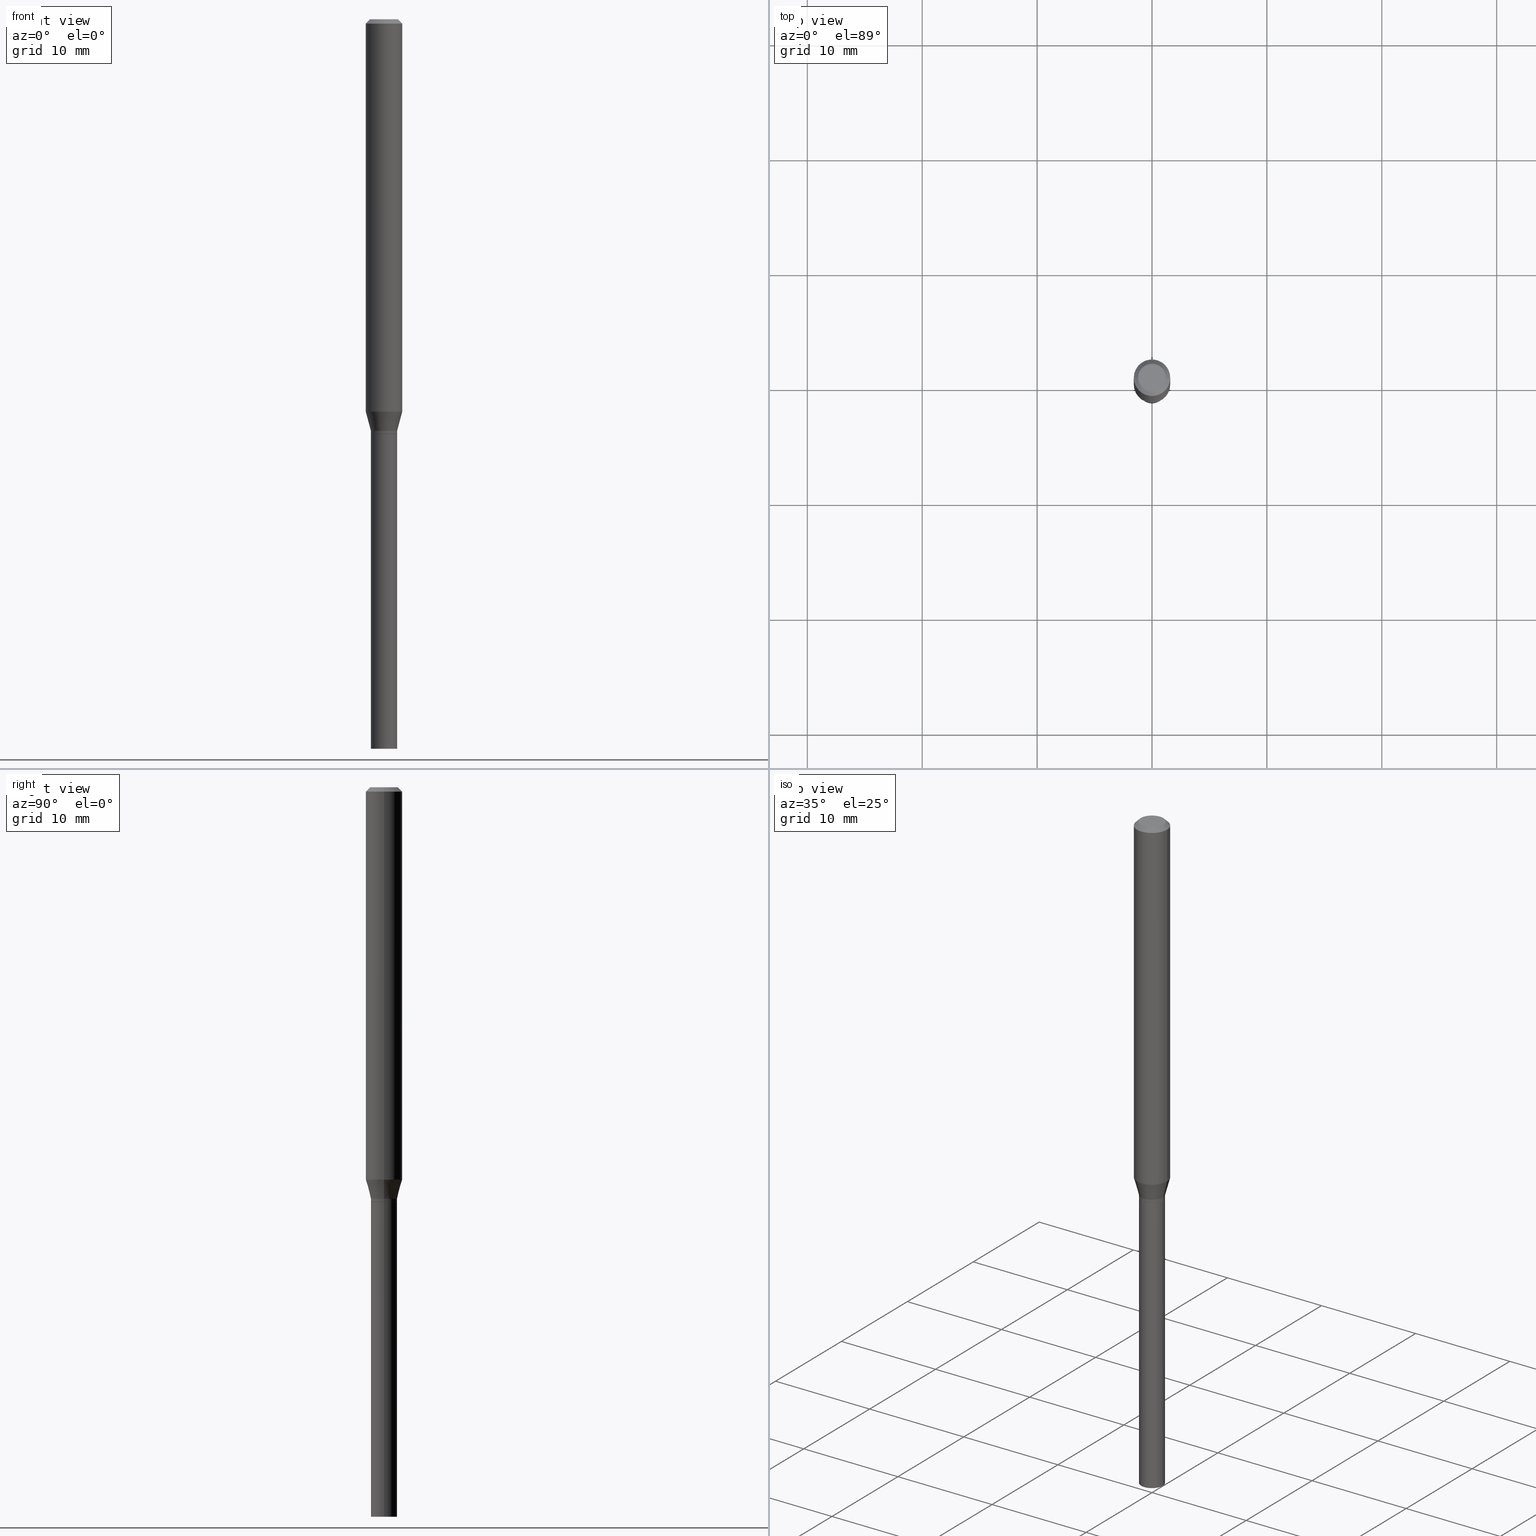
[diagram: canonical four-view strip — front | top / right | iso, engineering-drawing reading convention]
A machine part, canonical four-view strip (front | top / right | iso — engineering-drawing reading convention). The complete STEP part file that produces these views, byte-faithful:
ISO-10303-21;
HEADER;
FILE_DESCRIPTION (( 'STEP AP203' ),
    '1' );
FILE_NAME ('00658.STEP',
    '2024-03-19T22:22:50',
    ( '' ),
    ( '' ),
    'SwSTEP 2.0',
    'SolidWorks 2023',
    '' );
FILE_SCHEMA (( 'CONFIG_CONTROL_DESIGN' ));
ENDSEC;

DATA;
#1 = ADVANCED_FACE ( 'NONE', ( #61 ), #199, .F. ) ;
#2 = DIRECTION ( 'NONE',  ( 0.000000000000000000, 0.000000000000000000, 1.000000000000000000 ) ) ;
#3 = ORIENTED_EDGE ( 'NONE', *, *, #115, .T. ) ;
#4 = VERTEX_POINT ( 'NONE', #409 ) ;
#5 = DIRECTION ( 'NONE',  ( -1.000000000000000000, 6.982962677686265922E-15, -4.876176775795935793E-29 ) ) ;
#6 = ADVANCED_FACE ( 'NONE', ( #189 ), #192, .T. ) ;
#7 = CALENDAR_DATE ( 2024, 19, 3 ) ;
#8 = DIRECTION ( 'NONE',  ( 1.000000000000000000, -6.982962677686266711E-15, 4.876176775795935793E-29 ) ) ;
#9 = ORIENTED_EDGE ( 'NONE', *, *, #273, .F. ) ;
#10 = CC_DESIGN_PERSON_AND_ORGANIZATION_ASSIGNMENT ( #340, #128, ( #161 ) ) ;
#11 = CONICAL_SURFACE ( 'NONE', #326, 0.06250000000000000000, 0.7853981633974512766 ) ;
#12 = FACE_OUTER_BOUND ( 'NONE', #76, .T. ) ;
#13 = ORIENTED_EDGE ( 'NONE', *, *, #251, .F. ) ;
#14 = APPROVAL_ROLE ( '' ) ;
#15 = EDGE_LOOP ( 'NONE', ( #420, #208, #325, #462 ) ) ;
#16 = DIRECTION ( 'NONE',  ( 1.000000000000000000, -6.982962677686246989E-15, 0.000000000000000000 ) ) ;
#17 = APPROVAL_ROLE ( '' ) ;
#18 = PLANE ( 'NONE',  #433 ) ;
#19 = ORIENTED_EDGE ( 'NONE', *, *, #459, .T. ) ;
#20 = AXIS2_PLACEMENT_3D ( 'NONE', #307, #22, #444 ) ;
#21 = LOCAL_TIME ( 18, 22, 50.00000000000000000, #111 ) ;
#22 = DIRECTION ( 'NONE',  ( -2.445468806185136597E-29, 3.491481338843145583E-15, 1.000000000000000000 ) ) ;
#23 = CYLINDRICAL_SURFACE ( 'NONE', #286, 0.04499999999999991507 ) ;
#24 = DIRECTION ( 'NONE',  ( -2.445468806185136597E-29, 3.491481338843145583E-15, 1.000000000000000000 ) ) ;
#25 = EDGE_LOOP ( 'NONE', ( #194, #380 ) ) ;
#26 = DIRECTION ( 'NONE',  ( -2.438088387897960049E-29, 3.491481338843145188E-15, 1.000000000000000000 ) ) ;
#27 = CIRCLE ( 'NONE', #244, 0.06250000000000000000 ) ;
#28 = DIRECTION ( 'NONE',  ( -2.445468806185136597E-29, 3.491481338843145583E-15, 1.000000000000000000 ) ) ;
#29 = APPROVAL_PERSON_ORGANIZATION ( #151, #291, #82 ) ;
#30 = CARTESIAN_POINT ( 'NONE',  ( 3.448111016721042669E-29, -4.922988687768835701E-15, -1.409999999999999920 ) ) ;
#31 = VERTEX_POINT ( 'NONE', #196 ) ;
#32 = LINE ( 'NONE', #164, #103 ) ;
#33 = DIRECTION ( 'NONE',  ( 1.000000000000000000, -6.982962677686257244E-15, 0.000000000000000000 ) ) ;
#34 = EDGE_CURVE ( 'NONE', #405, #122, #90, .T. ) ;
#35 = VERTEX_POINT ( 'NONE', #149 ) ;
#36 = APPROVAL_PERSON_ORGANIZATION ( #404, #436, #17 ) ;
#37 = DIRECTION ( 'NONE',  ( 1.000000000000000000, -6.982962677686266711E-15, 0.000000000000000000 ) ) ;
#38 = ADVANCED_FACE ( 'NONE', ( #86 ), #456, .T. ) ;
#39 = VERTEX_POINT ( 'NONE', #124 ) ;
#40 = AXIS2_PLACEMENT_3D ( 'NONE', #30, #242, #344 ) ;
#41 = VECTOR ( 'NONE', #99, 39.37007874015748143 ) ;
#42 = PRODUCT_RELATED_PRODUCT_CATEGORY ( 'detail', '', ( #51 ) ) ;
#43 = DIRECTION ( 'NONE',  ( -1.000000000000000000, 6.982962677686265922E-15, -4.876176775795935793E-29 ) ) ;
#44 = ORIENTED_EDGE ( 'NONE', *, *, #178, .F. ) ;
#45 = DATE_AND_TIME ( #263, #443 ) ;
#46 = CARTESIAN_POINT ( 'NONE',  ( -0.06250000000000000000, -4.250867727289546507E-15, -1.344689110867543391 ) ) ;
#47 = SHAPE_DEFINITION_REPRESENTATION ( #230, #183 ) ;
#48 = CARTESIAN_POINT ( 'NONE',  ( 3.668203209277705088E-31, -5.237222008264718399E-17, -0.01499999999999999944 ) ) ;
#49 = ORIENTED_EDGE ( 'NONE', *, *, #396, .F. ) ;
#50 = ORIENTED_EDGE ( 'NONE', *, *, #276, .F. ) ;
#51 = PRODUCT ( '00658', '00658', '', ( #305 ) ) ;
#52 = CIRCLE ( 'NONE', #237, 0.04749999999999999362 ) ;
#53 = CIRCLE ( 'NONE', #63, 0.06250000000000000000 ) ;
#54 = CALENDAR_DATE ( 2024, 19, 3 ) ;
#55 = VERTEX_POINT ( 'NONE', #296 ) ;
#56 = CARTESIAN_POINT ( 'NONE',  ( 3.668203209277705088E-31, -5.237222008264718399E-17, -0.01499999999999999944 ) ) ;
#57 = ORIENTED_EDGE ( 'NONE', *, *, #343, .T. ) ;
#58 = DIRECTION ( 'NONE',  ( -2.445468806185136597E-29, 3.491481338843145583E-15, 1.000000000000000000 ) ) ;
#59 = EDGE_CURVE ( 'NONE', #4, #464, #234, .T. ) ;
#60 = LINE ( 'NONE', #377, #427 ) ;
#61 = FACE_OUTER_BOUND ( 'NONE', #25, .T. ) ;
#62 = CIRCLE ( 'NONE', #72, 0.06250000000000000000 ) ;
#63 = AXIS2_PLACEMENT_3D ( 'NONE', #211, #109, #37 ) ;
#64 = EDGE_CURVE ( 'NONE', #405, #31, #77, .T. ) ;
#65 = DIRECTION ( 'NONE',  ( -2.445468806185136597E-29, 3.491481338843145583E-15, 1.000000000000000000 ) ) ;
#66 = DIRECTION ( 'NONE',  ( -2.445468806185136877E-29, 3.491481338843145188E-15, 1.000000000000000000 ) ) ;
#67 = CYLINDRICAL_SURFACE ( 'NONE', #355, 0.04499999999999999833 ) ;
#68 = CARTESIAN_POINT ( 'NONE',  ( -0.04449999999999999789, -4.639062756569910103E-15, -1.419999999999999929 ) ) ;
#69 = DIRECTION ( 'NONE',  ( -1.000000000000000000, 6.982962677686266711E-15, 0.000000000000000000 ) ) ;
#70 = APPROVAL ( #437, 'UNSPECIFIED' ) ;
#71 = FACE_OUTER_BOUND ( 'NONE', #15, .T. ) ;
#72 = AXIS2_PLACEMENT_3D ( 'NONE', #56, #311, #266 ) ;
#73 = LINE ( 'NONE', #176, #127 ) ;
#74 = EDGE_CURVE ( 'NONE', #35, #55, #60, .T. ) ;
#75 = DIRECTION ( 'NONE',  ( 1.000000000000000000, -6.982962677686246989E-15, 0.000000000000000000 ) ) ;
#76 = EDGE_LOOP ( 'NONE', ( #361, #19, #57, #454 ) ) ;
#77 = CIRCLE ( 'NONE', #144, 0.04500000000000019262 ) ;
#78 = CONICAL_SURFACE ( 'NONE', #342, 0.04449999999999999789, 0.7853981633980202659 ) ;
#79 = EDGE_CURVE ( 'NONE', #256, #35, #373, .T. ) ;
#80 = APPROVAL_DATE_TIME ( #408, #436 ) ;
#81 = DIRECTION ( 'NONE',  ( -2.445468806185136597E-29, 3.491481338843145583E-15, 1.000000000000000000 ) ) ;
#82 = APPROVAL_ROLE ( '' ) ;
#83 = DIRECTION ( 'NONE',  ( -2.445468806185136597E-29, 3.491481338843145583E-15, 1.000000000000000000 ) ) ;
#84 = ORIENTED_EDGE ( 'NONE', *, *, #93, .F. ) ;
#85 = PERSON_AND_ORGANIZATION_ROLE ( 'creator' ) ;
#86 = FACE_OUTER_BOUND ( 'NONE', #187, .T. ) ;
#87 = AXIS2_PLACEMENT_3D ( 'NONE', #200, #28, #347 ) ;
#88 = AXIS2_PLACEMENT_3D ( 'NONE', #429, #360, #75 ) ;
#89 = DATE_AND_TIME ( #195, #21 ) ;
#90 = LINE ( 'NONE', #446, #135 ) ;
#91 = ORIENTED_EDGE ( 'NONE', *, *, #303, .T. ) ;
#92 = DIRECTION ( 'NONE',  ( -2.445468806185136597E-29, 3.491481338843145583E-15, 1.000000000000000000 ) ) ;
#93 = EDGE_CURVE ( 'NONE', #316, #464, #62, .T. ) ;
#94 = ADVANCED_FACE ( 'NONE', ( #193 ), #113, .T. ) ;
#95 = FACE_OUTER_BOUND ( 'NONE', #304, .T. ) ;
#96 = EDGE_LOOP ( 'NONE', ( #3, #366 ) ) ;
#97 = AXIS2_PLACEMENT_3D ( 'NONE', #386, #102, #350 ) ;
#98 = ADVANCED_FACE ( 'NONE', ( #12 ), #160, .T. ) ;
#99 = DIRECTION ( 'NONE',  ( 0.2588190451025211281, 1.565188264969623940E-15, 0.9659258262890682012 ) ) ;
#100 = CARTESIAN_POINT ( 'NONE',  ( 0.000000000000000000, 0.000000000000000000, 0.000000000000000000 ) ) ;
#101 = DIRECTION ( 'NONE',  ( 1.000000000000000000, -6.982962677686269077E-15, 0.000000000000000000 ) ) ;
#102 = DIRECTION ( 'NONE',  ( -2.445468806185136597E-29, 3.491481338843145583E-15, 1.000000000000000000 ) ) ;
#103 = VECTOR ( 'NONE', #170, 39.37007874015748854 ) ;
#104 = CARTESIAN_POINT ( 'NONE',  ( 3.448111016721042669E-29, -4.922988687768835701E-15, -1.409999999999999920 ) ) ;
#105 = VERTEX_POINT ( 'NONE', #339 ) ;
#106 = FACE_OUTER_BOUND ( 'NONE', #96, .T. ) ;
#107 = APPLICATION_PROTOCOL_DEFINITION ( 'international standard', 'config_control_design', 1994, #270 ) ;
#108 = ORIENTED_EDGE ( 'NONE', *, *, #257, .T. ) ;
#109 = DIRECTION ( 'NONE',  ( -2.445468806185136597E-29, 3.491481338843145583E-15, 1.000000000000000000 ) ) ;
#110 = ADVANCED_FACE ( 'NONE', ( #130 ), #18, .F. ) ;
#111 = COORDINATED_UNIVERSAL_TIME_OFFSET ( 5, 0, .BEHIND. ) ;
#112 = ORIENTED_EDGE ( 'NONE', *, *, #365, .F. ) ;
#113 = CONICAL_SURFACE ( 'NONE', #20, 0.04449999999999999789, 0.7853981633980202659 ) ;
#114 = CIRCLE ( 'NONE', #232, 0.04449999999999999789 ) ;
#115 = EDGE_CURVE ( 'NONE', #129, #105, #52, .T. ) ;
#116 = MANIFOLD_SOLID_BREP ( 'Body-Move/Copy2[2]', #315 ) ;
#117 = APPROVAL_DATE_TIME ( #123, #70 ) ;
#118 = CYLINDRICAL_SURFACE ( 'NONE', #213, 0.04499999999999991507 ) ;
#119 = DATE_AND_TIME ( #54, #422 ) ;
#120 = EDGE_CURVE ( 'NONE', #131, #4, #27, .T. ) ;
#121 = DIRECTION ( 'NONE',  ( -2.438088387897960049E-29, 3.491481338843145188E-15, 1.000000000000000000 ) ) ;
#122 = VERTEX_POINT ( 'NONE', #224 ) ;
#123 = DATE_AND_TIME ( #7, #159 ) ;
#124 = CARTESIAN_POINT ( 'NONE',  ( 0.04499999999999999833, -5.272136821653149037E-15, -1.420000000000000151 ) ) ;
#125 = CIRCLE ( 'NONE', #87, 0.04499999999999963751 ) ;
#126 = ORIENTED_EDGE ( 'NONE', *, *, #365, .T. ) ;
#127 = VECTOR ( 'NONE', #287, 39.37007874015748143 ) ;
#128 = PERSON_AND_ORGANIZATION_ROLE ( 'creator' ) ;
#129 = VERTEX_POINT ( 'NONE', #369 ) ;
#130 = FACE_OUTER_BOUND ( 'NONE', #428, .T. ) ;
#131 = VERTEX_POINT ( 'NONE', #46 ) ;
#132 = CARTESIAN_POINT ( 'NONE',  ( 2.066805758436263276E-45, -2.950850862763961857E-31, -8.451572774957708509E-17 ) ) ;
#133 = CC_DESIGN_PERSON_AND_ORGANIZATION_ASSIGNMENT ( #260, #156, ( #174 ) ) ;
#134 = CARTESIAN_POINT ( 'NONE',  ( 3.471342970379802534E-29, -4.956157760487845847E-15, -1.419500000000000206 ) ) ;
#135 = VECTOR ( 'NONE', #338, 39.37007874015748143 ) ;
#136 = CARTESIAN_POINT ( 'NONE',  ( 3.472565704782893654E-29, -4.957903501157266562E-15, -1.419999999999999929 ) ) ;
#137 = CARTESIAN_POINT ( 'NONE',  ( 3.472565704782894214E-29, -4.957903501157267351E-15, -1.420000000000000151 ) ) ;
#138 = ORIENTED_EDGE ( 'NONE', *, *, #240, .F. ) ;
#139 = DIRECTION ( 'NONE',  ( 1.000000000000000000, -6.982962677686265922E-15, 4.876176775795936353E-29 ) ) ;
#140 = DIRECTION ( 'NONE',  ( 1.000000000000000000, -6.982962677686266711E-15, 4.876176775795935793E-29 ) ) ;
#141 = ORIENTED_EDGE ( 'NONE', *, *, #432, .F. ) ;
#142 = DIRECTION ( 'NONE',  ( -2.445468806185136597E-29, 3.491481338843145583E-15, 1.000000000000000000 ) ) ;
#143 = DIRECTION ( 'NONE',  ( 2.438088387897960049E-29, -3.491481338843145188E-15, -1.000000000000000000 ) ) ;
#144 = AXIS2_PLACEMENT_3D ( 'NONE', #185, #231, #374 ) ;
#145 = VECTOR ( 'NONE', #385, 39.37007874015748143 ) ;
#146 = DIRECTION ( 'NONE',  ( 1.000000000000000000, -6.982962677686262766E-15, 0.000000000000000000 ) ) ;
#147 = ORIENTED_EDGE ( 'NONE', *, *, #306, .F. ) ;
#148 = COORDINATED_UNIVERSAL_TIME_OFFSET ( 5, 0, .BEHIND. ) ;
#149 = CARTESIAN_POINT ( 'NONE',  ( -0.04499999999999999833, -6.523559193040520779E-15, -2.500000000000000000 ) ) ;
#150 = AXIS2_PLACEMENT_3D ( 'NONE', #137, #24, #203 ) ;
#151 = PERSON_AND_ORGANIZATION ( #226, #267 ) ;
#152 = CARTESIAN_POINT ( 'NONE',  ( 0.06250000000000000000, -4.364351673553916694E-16, 3.047610484872459871E-30 ) ) ;
#153 = ADVANCED_FACE ( 'NONE', ( #435 ), #118, .T. ) ;
#154 = DATE_TIME_ROLE ( 'creation_date' ) ;
#155 = DIRECTION ( 'NONE',  ( -2.445468806185136597E-29, 3.491481338843145583E-15, 1.000000000000000000 ) ) ;
#156 = PERSON_AND_ORGANIZATION_ROLE ( 'design_supplier' ) ;
#157 = DIRECTION ( 'NONE',  ( 1.000000000000000000, -6.982962677686265922E-15, 4.876176775795935793E-29 ) ) ;
#158 = CIRCLE ( 'NONE', #421, 0.04449999999999999789 ) ;
#159 = LOCAL_TIME ( 18, 22, 50.00000000000000000, #331 ) ;
#160 = CYLINDRICAL_SURFACE ( 'NONE', #221, 0.04499999999999999833 ) ;
#161 = PRODUCT_DEFINITION ( 'UNKNOWN', '', #174, #294 ) ;
#162 = ORIENTED_EDGE ( 'NONE', *, *, #367, .F. ) ;
#163 = DIRECTION ( 'NONE',  ( 1.000000000000000000, -6.982962677686257244E-15, 0.000000000000000000 ) ) ;
#164 = CARTESIAN_POINT ( 'NONE',  ( -0.04449999999999999789, -4.641711983744021304E-15, -1.419999999999999929 ) ) ;
#165 = AXIS2_PLACEMENT_3D ( 'NONE', #379, #440, #334 ) ;
#166 = AXIS2_PLACEMENT_3D ( 'NONE', #453, #280, #419 ) ;
#167 = EDGE_LOOP ( 'NONE', ( #402, #300, #239, #398 ) ) ;
#168 = FACE_OUTER_BOUND ( 'NONE', #233, .T. ) ;
#169 = CARTESIAN_POINT ( 'NONE',  ( 0.04499999999999963751, -5.237222008264715021E-15, -1.409999999999999920 ) ) ;
#170 = DIRECTION ( 'NONE',  ( -0.7071067811869518049, 7.493145998871813553E-15, 0.7071067811861430075 ) ) ;
#171 = ADVANCED_FACE ( 'NONE', ( #372 ), #11, .T. ) ;
#172 = ADVANCED_FACE ( 'NONE', ( #95 ), #23, .T. ) ;
#173 = PLANE ( 'NONE',  #206 ) ;
#174 = PRODUCT_DEFINITION_FORMATION_WITH_SPECIFIED_SOURCE ( 'ANY', '', #51, .NOT_KNOWN. ) ;
#175 = EDGE_CURVE ( 'NONE', #400, #31, #414, .T. ) ;
#176 = CARTESIAN_POINT ( 'NONE',  ( 0.06250000000000000000, -4.811533449433679005E-16, -0.01499999999999999944 ) ) ;
#177 = FACE_OUTER_BOUND ( 'NONE', #223, .T. ) ;
#178 = EDGE_CURVE ( 'NONE', #262, #122, #125, .T. ) ;
#179 = CIRCLE ( 'NONE', #40, 0.04499999999999963751 ) ;
#180 = AXIS2_PLACEMENT_3D ( 'NONE', #104, #324, #250 ) ;
#181 = ORIENTED_EDGE ( 'NONE', *, *, #59, .F. ) ;
#182 = CARTESIAN_POINT ( 'NONE',  ( -0.04499999999999963751, -4.603244456676792700E-15, -1.409999999999999920 ) ) ;
#183 = ADVANCED_BREP_SHAPE_REPRESENTATION ( '00658', ( #426, #116, #356 ), #465 ) ;
#184 = PERSON_AND_ORGANIZATION ( #226, #267 ) ;
#185 = CARTESIAN_POINT ( 'NONE',  ( 3.471342970379802534E-29, -4.956157760487845847E-15, -1.419500000000000206 ) ) ;
#186 = ADVANCED_FACE ( 'NONE', ( #168 ), #389, .T. ) ;
#187 = EDGE_LOOP ( 'NONE', ( #147, #297, #335, #50 ) ) ;
#188 = APPLICATION_CONTEXT ( 'configuration controlled 3d designs of mechanical parts and assemblies' ) ;
#189 = FACE_OUTER_BOUND ( 'NONE', #431, .T. ) ;
#190 = CC_DESIGN_APPROVAL ( #436, ( #349 ) ) ;
#191 = DATE_TIME_ROLE ( 'classification_date' ) ;
#192 = CYLINDRICAL_SURFACE ( 'NONE', #205, 0.06250000000000000000 ) ;
#193 = FACE_OUTER_BOUND ( 'NONE', #359, .T. ) ;
#194 = ORIENTED_EDGE ( 'NONE', *, *, #79, .F. ) ;
#195 = CALENDAR_DATE ( 2024, 19, 3 ) ;
#196 = CARTESIAN_POINT ( 'NONE',  ( 0.04500000000000019262, -5.270391080983729111E-15, -1.419500000000000206 ) ) ;
#197 = CIRCLE ( 'NONE', #150, 0.04499999999999999833 ) ;
#198 = CIRCLE ( 'NONE', #88, 0.04499999999999999833 ) ;
#199 = PLANE ( 'NONE',  #348 ) ;
#200 = CARTESIAN_POINT ( 'NONE',  ( 3.448111016721042669E-29, -4.922988687768835701E-15, -1.409999999999999920 ) ) ;
#201 = ORIENTED_EDGE ( 'NONE', *, *, #175, .T. ) ;
#202 = CARTESIAN_POINT ( 'NONE',  ( 0.04449999999999999789, -5.268645340314304452E-15, -1.419999999999999929 ) ) ;
#203 = DIRECTION ( 'NONE',  ( 1.000000000000000000, -6.982962677686269077E-15, 0.000000000000000000 ) ) ;
#204 = ADVANCED_FACE ( 'NONE', ( #346 ), #67, .T. ) ;
#205 = AXIS2_PLACEMENT_3D ( 'NONE', #411, #302, #8 ) ;
#206 = AXIS2_PLACEMENT_3D ( 'NONE', #214, #364, #5 ) ;
#207 = DIRECTION ( 'NONE',  ( -2.445468806185136597E-29, 3.491481338843145583E-15, 1.000000000000000000 ) ) ;
#208 = ORIENTED_EDGE ( 'NONE', *, *, #345, .T. ) ;
#209 = CARTESIAN_POINT ( 'NONE',  ( 0.04499999999999999833, -3.142333204958819823E-16, 2.194279549108170967E-30 ) ) ;
#210 = CC_DESIGN_PERSON_AND_ORGANIZATION_ASSIGNMENT ( #184, #85, ( #174 ) ) ;
#211 = CARTESIAN_POINT ( 'NONE',  ( 3.668203209277705088E-31, -5.237222008264718399E-17, -0.01499999999999999944 ) ) ;
#212 = ORIENTED_EDGE ( 'NONE', *, *, #59, .T. ) ;
#213 = AXIS2_PLACEMENT_3D ( 'NONE', #407, #83, #229 ) ;
#214 = CARTESIAN_POINT ( 'NONE',  ( 3.142333204959166428E-16, 0.04499999999999503703, -1.420000000000000373 ) ) ;
#215 = VECTOR ( 'NONE', #289, 39.37007874015748143 ) ;
#216 = LENGTH_MEASURE_WITH_UNIT ( LENGTH_MEASURE( 0.02539999999999999897 ), #457 );
#217 = LINE ( 'NONE', #248, #215 ) ;
#218 = ORIENTED_EDGE ( 'NONE', *, *, #251, .T. ) ;
#219 = EDGE_LOOP ( 'NONE', ( #362, #449, #354, #138 ) ) ;
#220 = CC_DESIGN_PERSON_AND_ORGANIZATION_ASSIGNMENT ( #434, #368, ( #51 ) ) ;
#221 = AXIS2_PLACEMENT_3D ( 'NONE', #271, #155, #438 ) ;
#222 = CC_DESIGN_APPROVAL ( #291, ( #174 ) ) ;
#223 = EDGE_LOOP ( 'NONE', ( #141, #442, #265, #460 ) ) ;
#224 = CARTESIAN_POINT ( 'NONE',  ( -0.04499999999999963751, -4.427056091983169998E-15, -1.409999999999999920 ) ) ;
#225 = ORIENTED_EDGE ( 'NONE', *, *, #343, .F. ) ;
#226 = PERSON ( 'UNSPECIFIED', 'UNSPECIFIED', 'UNSPECIFIED', ('UNSPECIFIED'), ('UNSPECIFIED'), ('UNSPECIFIED') ) ;
#227 = PERSON_AND_ORGANIZATION_ROLE ( 'classification_officer' ) ;
#228 = ORIENTED_EDGE ( 'NONE', *, *, #253, .T. ) ;
#229 = DIRECTION ( 'NONE',  ( 1.000000000000000000, -6.982962677686265922E-15, 4.876176775795936353E-29 ) ) ;
#230 = PRODUCT_DEFINITION_SHAPE ( 'NONE', 'NONE',  #161 ) ;
#231 = DIRECTION ( 'NONE',  ( -2.445468806185136597E-29, 3.491481338843145583E-15, 1.000000000000000000 ) ) ;
#232 = AXIS2_PLACEMENT_3D ( 'NONE', #136, #142, #33 ) ;
#233 = EDGE_LOOP ( 'NONE', ( #370, #466, #49, #336 ) ) ;
#234 = LINE ( 'NONE', #152, #249 ) ;
#235 = CARTESIAN_POINT ( 'NONE',  ( 6.113672015462842613E-29, -8.728703347107864943E-15, -2.500000000000000000 ) ) ;
#236 = CARTESIAN_POINT ( 'NONE',  ( 3.472565704782894214E-29, -4.957903501157267351E-15, -1.420000000000000151 ) ) ;
#237 = AXIS2_PLACEMENT_3D ( 'NONE', #132, #81, #269 ) ;
#238 = AXIS2_PLACEMENT_3D ( 'NONE', #382, #314, #140 ) ;
#239 = ORIENTED_EDGE ( 'NONE', *, *, #276, .T. ) ;
#240 = EDGE_CURVE ( 'NONE', #122, #262, #179, .T. ) ;
#241 = DIRECTION ( 'NONE',  ( -2.445468806185136597E-29, 3.491481338843145583E-15, 1.000000000000000000 ) ) ;
#242 = DIRECTION ( 'NONE',  ( -2.445468806185136597E-29, 3.491481338843145583E-15, 1.000000000000000000 ) ) ;
#243 = CARTESIAN_POINT ( 'NONE',  ( 3.472565704782893654E-29, -4.957903501157266562E-15, -1.419999999999999929 ) ) ;
#244 = AXIS2_PLACEMENT_3D ( 'NONE', #413, #92, #261 ) ;
#245 = VECTOR ( 'NONE', #330, 39.37007874015748143 ) ;
#246 = LINE ( 'NONE', #415, #41 ) ;
#247 = FACE_OUTER_BOUND ( 'NONE', #395, .T. ) ;
#248 = CARTESIAN_POINT ( 'NONE',  ( 0.04499999999999991507, -3.142333204958813906E-16, 2.194279549108167113E-30 ) ) ;
#249 = VECTOR ( 'NONE', #299, 39.37007874015748143 ) ;
#250 = DIRECTION ( 'NONE',  ( 1.000000000000000000, -6.982962677686260400E-15, 0.000000000000000000 ) ) ;
#251 = EDGE_CURVE ( 'NONE', #39, #55, #197, .T. ) ;
#252 = DIRECTION ( 'NONE',  ( -2.445468806185136597E-29, 3.491481338843145583E-15, 1.000000000000000000 ) ) ;
#253 = EDGE_CURVE ( 'NONE', #131, #316, #452, .T. ) ;
#254 = CARTESIAN_POINT ( 'NONE',  ( 0.04449999999999999789, -5.268645340314304452E-15, -1.419999999999999929 ) ) ;
#255 = ORIENTED_EDGE ( 'NONE', *, *, #64, .F. ) ;
#256 = VERTEX_POINT ( 'NONE', #448 ) ;
#257 = EDGE_CURVE ( 'NONE', #55, #39, #308, .T. ) ;
#258 = APPLICATION_PROTOCOL_DEFINITION ( 'international standard', 'config_control_design', 1994, #188 ) ;
#259 = CLOSED_SHELL ( 'NONE', ( #204, #1, #98, #391 ) ) ;
#260 = PERSON_AND_ORGANIZATION ( #226, #267 ) ;
#261 = DIRECTION ( 'NONE',  ( 1.000000000000000000, -6.982962677686262766E-15, 0.000000000000000000 ) ) ;
#262 = VERTEX_POINT ( 'NONE', #169 ) ;
#263 = CALENDAR_DATE ( 2024, 19, 3 ) ;
#264 = DIRECTION ( 'NONE',  ( 2.445468806185136597E-29, -3.491481338843145583E-15, -1.000000000000000000 ) ) ;
#265 = ORIENTED_EDGE ( 'NONE', *, *, #322, .T. ) ;
#266 = DIRECTION ( 'NONE',  ( 1.000000000000000000, -6.982962677686266711E-15, 0.000000000000000000 ) ) ;
#267 = ORGANIZATION ( 'UNSPECIFIED', 'UNSPECIFIED', '' ) ;
#268 = APPROVAL_STATUS ( 'not_yet_approved' ) ;
#269 = DIRECTION ( 'NONE',  ( 1.000000000000000000, -6.982962677686267499E-15, 4.884662768193073002E-29 ) ) ;
#270 = APPLICATION_CONTEXT ( 'configuration controlled 3d designs of mechanical parts and assemblies' ) ;
#271 = CARTESIAN_POINT ( 'NONE',  ( 0.000000000000000000, 0.000000000000000000, 0.000000000000000000 ) ) ;
#272 = DIRECTION ( 'NONE',  ( 1.000000000000000000, -6.982962677686265922E-15, 4.876176775795935793E-29 ) ) ;
#273 = EDGE_CURVE ( 'NONE', #400, #279, #158, .T. ) ;
#274 = CARTESIAN_POINT ( 'NONE',  ( -0.06250000000000000000, -1.929575368761065682E-15, -0.01499999999999999944 ) ) ;
#275 = VECTOR ( 'NONE', #312, 39.37007874015748143 ) ;
#276 = EDGE_CURVE ( 'NONE', #129, #316, #450, .T. ) ;
#277 = CARTESIAN_POINT ( 'NONE',  ( 0.000000000000000000, 0.000000000000000000, 0.000000000000000000 ) ) ;
#278 = DIRECTION ( 'NONE',  ( 0.7071067811869518049, -2.468850131086492060E-15, 0.7071067811861430075 ) ) ;
#279 = VERTEX_POINT ( 'NONE', #68 ) ;
#280 = DIRECTION ( 'NONE',  ( -2.445468806185136597E-29, 3.491481338843145583E-15, 1.000000000000000000 ) ) ;
#281 = LOCAL_TIME ( 18, 22, 50.00000000000000000, #371 ) ;
#282 = CARTESIAN_POINT ( 'NONE',  ( -0.04500000000000019262, -4.636413529395799690E-15, -1.419500000000000206 ) ) ;
#283 = CC_DESIGN_DATE_AND_TIME_ASSIGNMENT ( #45, #154, ( #161 ) ) ;
#284 = DIRECTION ( 'NONE',  ( 1.000000000000000000, -6.982962677686257244E-15, 0.000000000000000000 ) ) ;
#285 = CARTESIAN_POINT ( 'NONE',  ( 0.06250000000000000000, -4.888073874380388472E-16, -0.01499999999999999944 ) ) ;
#286 = AXIS2_PLACEMENT_3D ( 'NONE', #277, #241, #139 ) ;
#287 = DIRECTION ( 'NONE',  ( 0.7071067811865496822, -7.319954787623263934E-15, -0.7071067811865454633 ) ) ;
#288 = EDGE_LOOP ( 'NONE', ( #387, #228, #337, #181 ) ) ;
#289 = DIRECTION ( 'NONE',  ( -2.445468806185136877E-29, 3.491481338843145188E-15, 1.000000000000000000 ) ) ;
#290 = ORIENTED_EDGE ( 'NONE', *, *, #79, .T. ) ;
#291 = APPROVAL ( #298, 'UNSPECIFIED' ) ;
#292 = DIMENSIONAL_EXPONENTS ( 1.000000000000000000, 0.000000000000000000, 0.000000000000000000, 0.000000000000000000, 0.000000000000000000, 0.000000000000000000, 0.000000000000000000 ) ;
#293 = COORDINATED_UNIVERSAL_TIME_OFFSET ( 5, 0, .BEHIND. ) ;
#294 = DESIGN_CONTEXT ( 'detailed design', #188, 'design' ) ;
#295 = CC_DESIGN_APPROVAL ( #70, ( #161 ) ) ;
#296 = CARTESIAN_POINT ( 'NONE',  ( -0.04499999999999999833, -6.523559193040520779E-15, -1.420000000000000151 ) ) ;
#297 = ORIENTED_EDGE ( 'NONE', *, *, #430, .T. ) ;
#298 = APPROVAL_STATUS ( 'not_yet_approved' ) ;
#299 = DIRECTION ( 'NONE',  ( -2.445468806185136877E-29, 3.491481338843145188E-15, 1.000000000000000000 ) ) ;
#300 = ORIENTED_EDGE ( 'NONE', *, *, #115, .F. ) ;
#301 = PERSON_AND_ORGANIZATION ( #226, #267 ) ;
#302 = DIRECTION ( 'NONE',  ( -2.445468806185136597E-29, 3.491481338843145583E-15, 1.000000000000000000 ) ) ;
#303 = EDGE_CURVE ( 'NONE', #31, #405, #333, .T. ) ;
#304 = EDGE_LOOP ( 'NONE', ( #91, #399, #44, #162 ) ) ;
#305 = MECHANICAL_CONTEXT ( 'NONE', #270, 'mechanical' ) ;
#306 = EDGE_CURVE ( 'NONE', #105, #129, #451, .T. ) ;
#307 = CARTESIAN_POINT ( 'NONE',  ( 3.472565704782893654E-29, -4.957903501157266562E-15, -1.419999999999999929 ) ) ;
#308 = CIRCLE ( 'NONE', #363, 0.04499999999999999833 ) ;
#309 = CONICAL_SURFACE ( 'NONE', #180, 0.04499999999999963751, 0.2617993877991497964 ) ;
#310 = UNCERTAINTY_MEASURE_WITH_UNIT (LENGTH_MEASURE( 1.000000000000000082E-05 ), #393, 'distance_accuracy_value', 'NONE');
#311 = DIRECTION ( 'NONE',  ( -2.445468806185136597E-29, 3.491481338843145583E-15, 1.000000000000000000 ) ) ;
#312 = DIRECTION ( 'NONE',  ( -0.7071067811865496822, 2.468850131082278754E-15, -0.7071067811865454633 ) ) ;
#313 = CC_DESIGN_PERSON_AND_ORGANIZATION_ASSIGNMENT ( #301, #227, ( #349 ) ) ;
#314 = DIRECTION ( 'NONE',  ( -2.445468806185136597E-29, 3.491481338843145583E-15, 1.000000000000000000 ) ) ;
#315 = CLOSED_SHELL ( 'NONE', ( #172, #381, #38, #351, #186, #445, #6, #171, #394, #110, #94, #153 ) ) ;
#316 = VERTEX_POINT ( 'NONE', #274 ) ;
#317 = CC_DESIGN_SECURITY_CLASSIFICATION ( #349, ( #174 ) ) ;
#318 = ORIENTED_EDGE ( 'NONE', *, *, #74, .T. ) ;
#319 = DIRECTION ( 'NONE',  ( -2.445468806185136597E-29, 3.491481338843145583E-15, 1.000000000000000000 ) ) ;
#320 = DIRECTION ( 'NONE',  ( 1.000000000000000000, -6.982962677686259611E-15, 0.000000000000000000 ) ) ;
#321 = FACE_OUTER_BOUND ( 'NONE', #288, .T. ) ;
#322 = EDGE_CURVE ( 'NONE', #262, #4, #246, .T. ) ;
#323 = CIRCLE ( 'NONE', #390, 0.06250000000000000000 ) ;
#324 = DIRECTION ( 'NONE',  ( -2.445468806185136597E-29, 3.491481338843145583E-15, 1.000000000000000000 ) ) ;
#325 = ORIENTED_EDGE ( 'NONE', *, *, #303, .F. ) ;
#326 = AXIS2_PLACEMENT_3D ( 'NONE', #48, #264, #69 ) ;
#327 = AXIS2_PLACEMENT_3D ( 'NONE', #357, #143, #43 ) ;
#328 = CARTESIAN_POINT ( 'NONE',  ( 0.000000000000000000, 0.000000000000000000, 0.000000000000000000 ) ) ;
#329 = ORIENTED_EDGE ( 'NONE', *, *, #253, .F. ) ;
#330 = DIRECTION ( 'NONE',  ( -0.2588190451025211281, 5.211531920934548675E-15, 0.9659258262890682012 ) ) ;
#331 = COORDINATED_UNIVERSAL_TIME_OFFSET ( 5, 0, .BEHIND. ) ;
#332 = CARTESIAN_POINT ( 'NONE',  ( 3.472565704782894214E-29, -4.957903501157267351E-15, -1.420000000000000151 ) ) ;
#333 = CIRCLE ( 'NONE', #397, 0.04500000000000019262 ) ;
#334 = DIRECTION ( 'NONE',  ( -1.000000000000000000, 6.982962677686266711E-15, 0.000000000000000000 ) ) ;
#335 = ORIENTED_EDGE ( 'NONE', *, *, #418, .T. ) ;
#336 = ORIENTED_EDGE ( 'NONE', *, *, #322, .F. ) ;
#337 = ORIENTED_EDGE ( 'NONE', *, *, #418, .F. ) ;
#338 = DIRECTION ( 'NONE',  ( -2.445468806185136877E-29, 3.491481338843145188E-15, 1.000000000000000000 ) ) ;
#339 = CARTESIAN_POINT ( 'NONE',  ( 0.04749999999999999362, -4.035134999187580102E-16, -8.451572774957450897E-17 ) ) ;
#340 = PERSON_AND_ORGANIZATION ( #226, #267 ) ;
#341 = DIRECTION ( 'NONE',  ( -2.445468806185136877E-29, 3.491481338843145188E-15, 1.000000000000000000 ) ) ;
#342 = AXIS2_PLACEMENT_3D ( 'NONE', #401, #423, #284 ) ;
#343 = EDGE_CURVE ( 'NONE', #256, #39, #392, .T. ) ;
#344 = DIRECTION ( 'NONE',  ( 1.000000000000000000, -6.982962677686260400E-15, 0.000000000000000000 ) ) ;
#345 = EDGE_CURVE ( 'NONE', #279, #405, #32, .T. ) ;
#346 = FACE_OUTER_BOUND ( 'NONE', #403, .T. ) ;
#347 = DIRECTION ( 'NONE',  ( 1.000000000000000000, -6.982962677686260400E-15, 0.000000000000000000 ) ) ;
#348 = AXIS2_PLACEMENT_3D ( 'NONE', #447, #26, #272 ) ;
#349 = SECURITY_CLASSIFICATION ( '', '', #378 ) ;
#350 = DIRECTION ( 'NONE',  ( 1.000000000000000000, -6.982962677686260400E-15, 0.000000000000000000 ) ) ;
#351 = ADVANCED_FACE ( 'NONE', ( #321 ), #455, .T. ) ;
#352 = CARTESIAN_POINT ( 'NONE',  ( -0.06250000000000000000, 3.840629472727444916E-16, -0.01499999999999999944 ) ) ;
#353 = LINE ( 'NONE', #182, #245 ) ;
#354 = ORIENTED_EDGE ( 'NONE', *, *, #367, .T. ) ;
#355 = AXIS2_PLACEMENT_3D ( 'NONE', #100, #65, #416 ) ;
#356 = AXIS2_PLACEMENT_3D ( 'NONE', #328, #2, #412 ) ;
#357 = CARTESIAN_POINT ( 'NONE',  ( 3.316907271900976096E-16, 0.04749999999999999362, -2.081032274698379328E-16 ) ) ;
#358 =( NAMED_UNIT ( * ) SI_UNIT ( $, .STERADIAN. ) SOLID_ANGLE_UNIT ( ) );
#359 = EDGE_LOOP ( 'NONE', ( #384, #126, #201, #255 ) ) ;
#360 = DIRECTION ( 'NONE',  ( -2.445468806185136597E-29, 3.491481338843145583E-15, 1.000000000000000000 ) ) ;
#361 = ORIENTED_EDGE ( 'NONE', *, *, #74, .F. ) ;
#362 = ORIENTED_EDGE ( 'NONE', *, *, #34, .F. ) ;
#363 = AXIS2_PLACEMENT_3D ( 'NONE', #236, #319, #101 ) ;
#364 = DIRECTION ( 'NONE',  ( 2.438088387897960049E-29, -3.491481338843145188E-15, -1.000000000000000000 ) ) ;
#365 = EDGE_CURVE ( 'NONE', #279, #400, #114, .T. ) ;
#366 = ORIENTED_EDGE ( 'NONE', *, *, #306, .T. ) ;
#367 = EDGE_CURVE ( 'NONE', #31, #262, #217, .T. ) ;
#368 = PERSON_AND_ORGANIZATION_ROLE ( 'design_owner' ) ;
#369 = CARTESIAN_POINT ( 'NONE',  ( -0.04749999999999999362, 3.578768372314209027E-16, -8.451572774957950098E-17 ) ) ;
#370 = ORIENTED_EDGE ( 'NONE', *, *, #178, .T. ) ;
#371 = COORDINATED_UNIVERSAL_TIME_OFFSET ( 5, 0, .BEHIND. ) ;
#372 = FACE_OUTER_BOUND ( 'NONE', #167, .T. ) ;
#373 = CIRCLE ( 'NONE', #463, 0.04499999999999999833 ) ;
#374 = DIRECTION ( 'NONE',  ( 1.000000000000000000, -6.982962677686259611E-15, 0.000000000000000000 ) ) ;
#375 = ORIENTED_EDGE ( 'NONE', *, *, #120, .T. ) ;
#376 = APPROVAL_DATE_TIME ( #119, #291 ) ;
#377 = CARTESIAN_POINT ( 'NONE',  ( -0.04499999999999999833, 3.197442310920450718E-16, -2.213520790614707560E-30 ) ) ;
#378 = SECURITY_CLASSIFICATION_LEVEL ( 'unclassified' ) ;
#379 = CARTESIAN_POINT ( 'NONE',  ( 3.668203209277705088E-31, -5.237222008264718399E-17, -0.01499999999999999944 ) ) ;
#380 = ORIENTED_EDGE ( 'NONE', *, *, #459, .F. ) ;
#381 = ADVANCED_FACE ( 'NONE', ( #71 ), #78, .T. ) ;
#382 = CARTESIAN_POINT ( 'NONE',  ( 0.000000000000000000, 0.000000000000000000, 0.000000000000000000 ) ) ;
#383 = VECTOR ( 'NONE', #278, 39.37007874015748854 ) ;
#384 = ORIENTED_EDGE ( 'NONE', *, *, #345, .F. ) ;
#385 = DIRECTION ( 'NONE',  ( -2.445468806185136877E-29, 3.491481338843145188E-15, 1.000000000000000000 ) ) ;
#386 = CARTESIAN_POINT ( 'NONE',  ( 3.448111016721042669E-29, -4.922988687768835701E-15, -1.409999999999999920 ) ) ;
#387 = ORIENTED_EDGE ( 'NONE', *, *, #396, .T. ) ;
#388 = DIRECTION ( 'NONE',  ( -2.445468806185136597E-29, 3.491481338843145583E-15, 1.000000000000000000 ) ) ;
#389 = CONICAL_SURFACE ( 'NONE', #97, 0.04499999999999963751, 0.2617993877991497964 ) ;
#390 = AXIS2_PLACEMENT_3D ( 'NONE', #425, #252, #146 ) ;
#391 = ADVANCED_FACE ( 'NONE', ( #247 ), #173, .F. ) ;
#392 = LINE ( 'NONE', #209, #145 ) ;
#393 =( CONVERSION_BASED_UNIT ( 'INCH', #216 ) LENGTH_UNIT ( ) NAMED_UNIT ( #292 ) );
#394 = ADVANCED_FACE ( 'NONE', ( #106 ), #461, .F. ) ;
#395 = EDGE_LOOP ( 'NONE', ( #218, #108 ) ) ;
#396 = EDGE_CURVE ( 'NONE', #4, #131, #323, .T. ) ;
#397 = AXIS2_PLACEMENT_3D ( 'NONE', #134, #207, #320 ) ;
#398 = ORIENTED_EDGE ( 'NONE', *, *, #93, .T. ) ;
#399 = ORIENTED_EDGE ( 'NONE', *, *, #34, .T. ) ;
#400 = VERTEX_POINT ( 'NONE', #254 ) ;
#401 = CARTESIAN_POINT ( 'NONE',  ( 3.472565704782893654E-29, -4.957903501157266562E-15, -1.419999999999999929 ) ) ;
#402 = ORIENTED_EDGE ( 'NONE', *, *, #430, .F. ) ;
#403 = EDGE_LOOP ( 'NONE', ( #290, #318, #13, #225 ) ) ;
#404 = PERSON_AND_ORGANIZATION ( #226, #267 ) ;
#405 = VERTEX_POINT ( 'NONE', #282 ) ;
#406 = PERSON_AND_ORGANIZATION ( #226, #267 ) ;
#407 = CARTESIAN_POINT ( 'NONE',  ( 0.000000000000000000, 0.000000000000000000, 0.000000000000000000 ) ) ;
#408 = DATE_AND_TIME ( #439, #281 ) ;
#409 = CARTESIAN_POINT ( 'NONE',  ( 0.06250000000000000000, -5.131392104495001581E-15, -1.344689110867543391 ) ) ;
#410 = APPROVAL_PERSON_ORGANIZATION ( #406, #70, #14 ) ;
#411 = CARTESIAN_POINT ( 'NONE',  ( 0.000000000000000000, 0.000000000000000000, 0.000000000000000000 ) ) ;
#412 = DIRECTION ( 'NONE',  ( 1.000000000000000000, 0.000000000000000000, 0.000000000000000000 ) ) ;
#413 = CARTESIAN_POINT ( 'NONE',  ( 3.288395274643403706E-29, -4.694956937139609123E-15, -1.344689110867543391 ) ) ;
#414 = LINE ( 'NONE', #202, #383 ) ;
#415 = CARTESIAN_POINT ( 'NONE',  ( 0.04499999999999963751, -5.237222008264715021E-15, -1.409999999999999920 ) ) ;
#416 = DIRECTION ( 'NONE',  ( 1.000000000000000000, -6.982962677686266711E-15, 4.876176775795935793E-29 ) ) ;
#417 = CARTESIAN_POINT ( 'NONE',  ( -0.06250000000000000000, 4.440892098500626162E-16, -3.074334431409316114E-30 ) ) ;
#418 = EDGE_CURVE ( 'NONE', #464, #316, #53, .T. ) ;
#419 = DIRECTION ( 'NONE',  ( 1.000000000000000000, -6.982962677686267499E-15, 4.884662768193073002E-29 ) ) ;
#420 = ORIENTED_EDGE ( 'NONE', *, *, #273, .T. ) ;
#421 = AXIS2_PLACEMENT_3D ( 'NONE', #243, #388, #163 ) ;
#422 = LOCAL_TIME ( 18, 22, 50.00000000000000000, #293 ) ;
#423 = DIRECTION ( 'NONE',  ( -2.445468806185136597E-29, 3.491481338843145583E-15, 1.000000000000000000 ) ) ;
#424 = CC_DESIGN_DATE_AND_TIME_ASSIGNMENT ( #89, #191, ( #349 ) ) ;
#425 = CARTESIAN_POINT ( 'NONE',  ( 3.288395274643403706E-29, -4.694956937139609123E-15, -1.344689110867543391 ) ) ;
#426 = MANIFOLD_SOLID_BREP ( 'Body-Move/Copy2[1]', #259 ) ;
#427 = VECTOR ( 'NONE', #341, 39.37007874015748143 ) ;
#428 = EDGE_LOOP ( 'NONE', ( #9, #112 ) ) ;
#429 = CARTESIAN_POINT ( 'NONE',  ( 6.113672015462842613E-29, -8.728703347107864943E-15, -2.500000000000000000 ) ) ;
#430 = EDGE_CURVE ( 'NONE', #105, #464, #73, .T. ) ;
#431 = EDGE_LOOP ( 'NONE', ( #329, #375, #212, #84 ) ) ;
#432 = EDGE_CURVE ( 'NONE', #122, #131, #353, .T. ) ;
#433 = AXIS2_PLACEMENT_3D ( 'NONE', #332, #121, #157 ) ;
#434 = PERSON_AND_ORGANIZATION ( #226, #267 ) ;
#435 = FACE_OUTER_BOUND ( 'NONE', #219, .T. ) ;
#436 = APPROVAL ( #268, 'UNSPECIFIED' ) ;
#437 = APPROVAL_STATUS ( 'not_yet_approved' ) ;
#438 = DIRECTION ( 'NONE',  ( 1.000000000000000000, -6.982962677686266711E-15, 4.876176775795935793E-29 ) ) ;
#439 = CALENDAR_DATE ( 2024, 19, 3 ) ;
#440 = DIRECTION ( 'NONE',  ( 2.445468806185136597E-29, -3.491481338843145583E-15, -1.000000000000000000 ) ) ;
#441 = VECTOR ( 'NONE', #66, 39.37007874015748143 ) ;
#442 = ORIENTED_EDGE ( 'NONE', *, *, #240, .T. ) ;
#443 = LOCAL_TIME ( 18, 22, 50.00000000000000000, #148 ) ;
#444 = DIRECTION ( 'NONE',  ( 1.000000000000000000, -6.982962677686257244E-15, 0.000000000000000000 ) ) ;
#445 = ADVANCED_FACE ( 'NONE', ( #177 ), #309, .T. ) ;
#446 = CARTESIAN_POINT ( 'NONE',  ( -0.04499999999999991507, 3.197442310920444802E-16, -2.213520790614703006E-30 ) ) ;
#447 = CARTESIAN_POINT ( 'NONE',  ( 6.198122052593289668E-29, -8.607766087339451973E-15, -2.500000000000000000 ) ) ;
#448 = CARTESIAN_POINT ( 'NONE',  ( 0.04499999999999999833, -9.042936667603745051E-15, -2.500000000000000000 ) ) ;
#449 = ORIENTED_EDGE ( 'NONE', *, *, #64, .T. ) ;
#450 = LINE ( 'NONE', #352, #275 ) ;
#451 = CIRCLE ( 'NONE', #166, 0.04749999999999999362 ) ;
#452 = LINE ( 'NONE', #417, #441 ) ;
#453 = CARTESIAN_POINT ( 'NONE',  ( 2.066805758436263276E-45, -2.950850862763961857E-31, -8.451572774957708509E-17 ) ) ;
#454 = ORIENTED_EDGE ( 'NONE', *, *, #257, .F. ) ;
#455 = CYLINDRICAL_SURFACE ( 'NONE', #238, 0.06250000000000000000 ) ;
#456 = CONICAL_SURFACE ( 'NONE', #165, 0.06250000000000000000, 0.7853981633974512766 ) ;
#457 =( LENGTH_UNIT ( ) NAMED_UNIT ( * ) SI_UNIT ( $, .METRE. ) );
#458 =( NAMED_UNIT ( * ) PLANE_ANGLE_UNIT ( ) SI_UNIT ( $, .RADIAN. ) );
#459 = EDGE_CURVE ( 'NONE', #35, #256, #198, .T. ) ;
#460 = ORIENTED_EDGE ( 'NONE', *, *, #120, .F. ) ;
#461 = PLANE ( 'NONE',  #327 ) ;
#462 = ORIENTED_EDGE ( 'NONE', *, *, #175, .F. ) ;
#463 = AXIS2_PLACEMENT_3D ( 'NONE', #235, #58, #16 ) ;
#464 = VERTEX_POINT ( 'NONE', #285 ) ;
#465 =( GEOMETRIC_REPRESENTATION_CONTEXT ( 3 ) GLOBAL_UNCERTAINTY_ASSIGNED_CONTEXT ( ( #310 ) ) GLOBAL_UNIT_ASSIGNED_CONTEXT ( ( #393, #458, #358 ) ) REPRESENTATION_CONTEXT ( 'NONE', 'WORKASPACE' ) );
#466 = ORIENTED_EDGE ( 'NONE', *, *, #432, .T. ) ;
ENDSEC;
END-ISO-10303-21;
